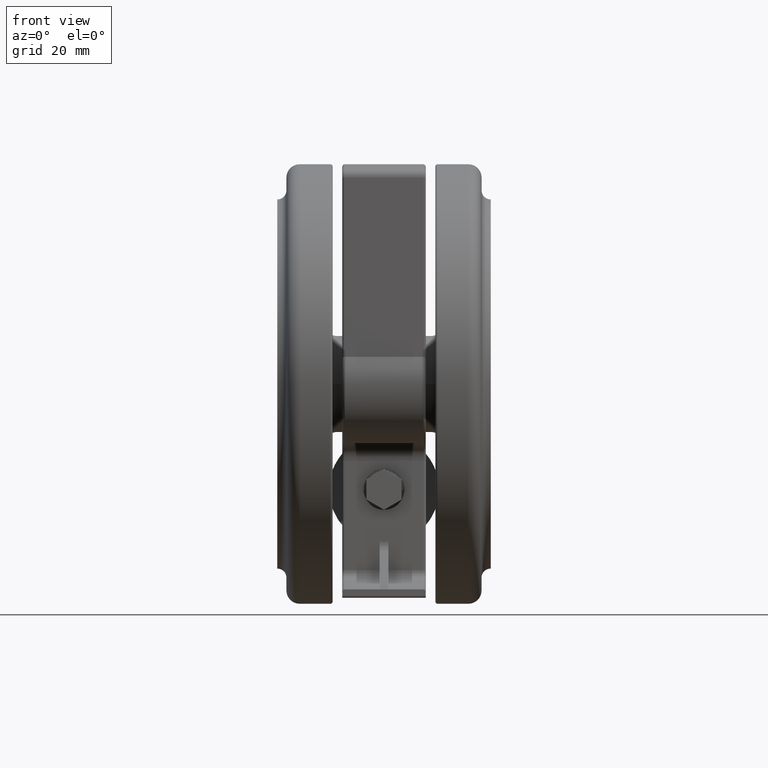
[diagram: clean part render]
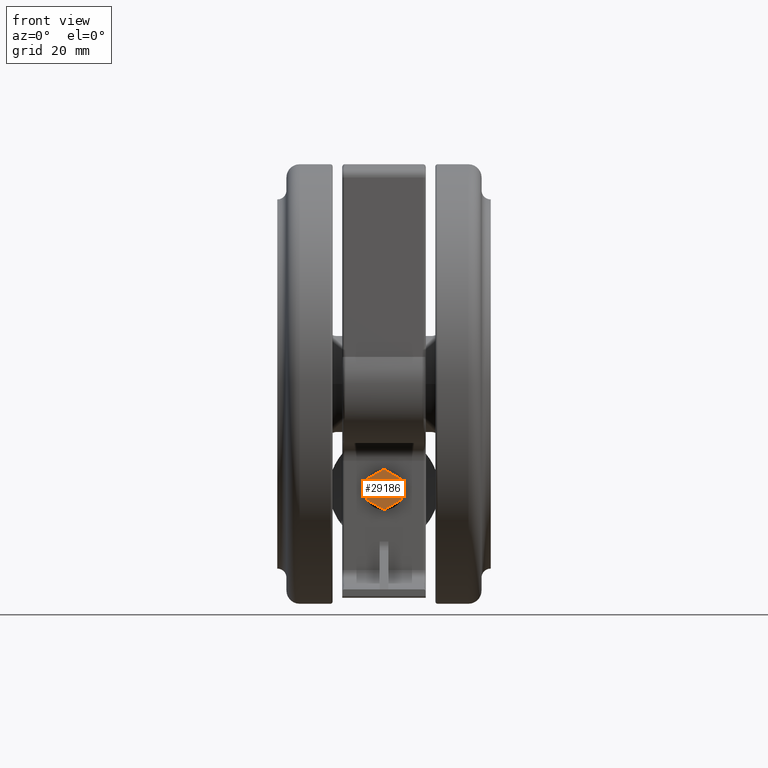
[diagram: same view with one face highlighted and labeled with its STEP entity id]
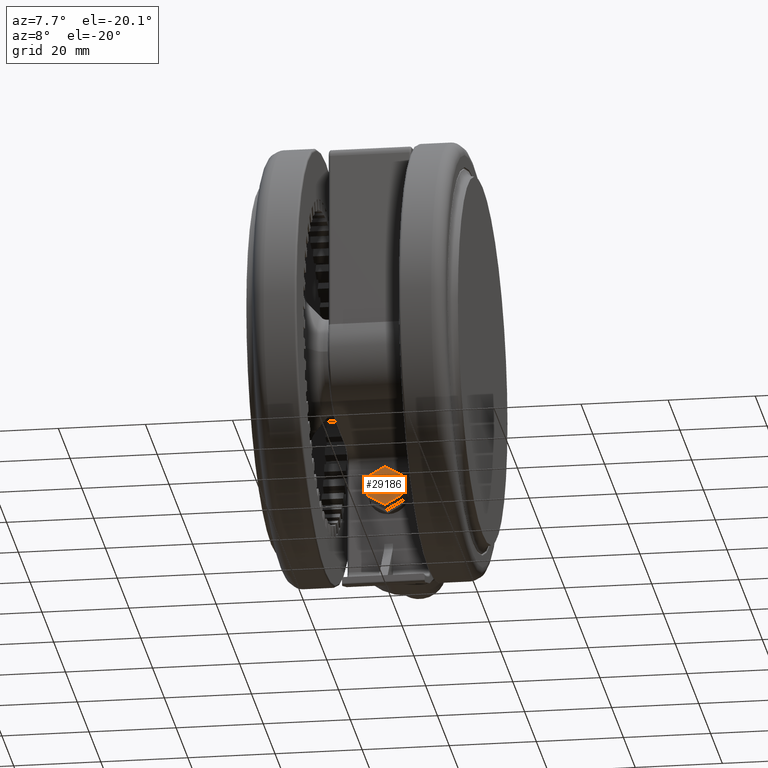
[diagram: same view with one face highlighted and labeled with its STEP entity id]
A machine part, front view. The second image highlights one B-rep face of the part: STEP entity #29186.
A second angle (auxiliary view) of the same face is appended — the face is thin or edge-on in the first view.
In plain terms, the highlighted planar face has unit normal (0, -1, -0).
Its self-contained STEP definition (entity closure, byte-faithful):
#61 = VECTOR ( 'NONE', #14828, 999.9999999999998900 ) ;
#67 = VERTEX_POINT ( 'NONE', #11247 ) ;
#483 = CARTESIAN_POINT ( 'NONE',  ( 19.38119784648298700, 13.70000000000003100, -24.30000000000000800 ) ) ;
#705 = VERTEX_POINT ( 'NONE', #22772 ) ;
#812 = VERTEX_POINT ( 'NONE', #28339 ) ;
#845 = DIRECTION ( 'NONE',  ( 1.224646799147352000E-016, -4.413456915335256700E-017, 1.000000000000000000 ) ) ;
#3256 = CARTESIAN_POINT ( 'NONE',  ( 23.99999999999999600, 13.70000000000003100, -24.30000000000001100 ) ) ;
#3566 = EDGE_LOOP ( 'NONE', ( #23375, #6774, #27808, #16905, #27290, #27100 ) ) ;
#5712 = DIRECTION ( 'NONE',  ( 1.161330068381886000E-016, -1.000000000000000000, -4.413456915335257900E-017 ) ) ;
#6674 = LINE ( 'NONE', #24826, #61 ) ;
#6774 = ORIENTED_EDGE ( 'NONE', *, *, #18357, .T. ) ;
#8913 = LINE ( 'NONE', #9899, #27331 ) ;
#8937 = VERTEX_POINT ( 'NONE', #12817 ) ;
#9899 = CARTESIAN_POINT ( 'NONE',  ( 21.69059892324149200, 13.70000000000003100, -20.30000000000001100 ) ) ;
#11247 = CARTESIAN_POINT ( 'NONE',  ( 28.61880215351700600, 13.70000000000003100, -24.30000000000001100 ) ) ;
#11619 = EDGE_CURVE ( 'NONE', #24491, #8937, #8913, .T. ) ;
#11999 = VECTOR ( 'NONE', #16662, 1000.000000000000000 ) ;
#12817 = CARTESIAN_POINT ( 'NONE',  ( 19.38119784648298700, 13.70000000000003100, -24.30000000000000800 ) ) ;
#13333 = CARTESIAN_POINT ( 'NONE',  ( 21.69059892324149200, 13.70000000000003100, -20.30000000000001100 ) ) ;
#14828 = DIRECTION ( 'NONE',  ( 0.5000000000000001100, 1.984484534720990000E-017, 0.8660254037844387100 ) ) ;
#15748 = VECTOR ( 'NONE', #18604, 1000.000000000000100 ) ;
#16454 = AXIS2_PLACEMENT_3D ( 'NONE', #3256, #5712, #845 ) ;
#16662 = DIRECTION ( 'NONE',  ( -1.000000000000000000, -1.161330068381886000E-016, 1.224646799147352000E-016 ) ) ;
#16905 = ORIENTED_EDGE ( 'NONE', *, *, #19906, .T. ) ;
#17411 = VECTOR ( 'NONE', #30497, 1000.000000000000000 ) ;
#17651 = EDGE_CURVE ( 'NONE', #705, #24491, #17858, .T. ) ;
#17858 = LINE ( 'NONE', #21736, #11999 ) ;
#18218 = LINE ( 'NONE', #22977, #17411 ) ;
#18357 = EDGE_CURVE ( 'NONE', #812, #27834, #18218, .T. ) ;
#18604 = DIRECTION ( 'NONE',  ( -0.4999999999999997200, -9.628816149097865900E-017, 0.8660254037844387100 ) ) ;
#19906 = EDGE_CURVE ( 'NONE', #67, #705, #22445, .T. ) ;
#21736 = CARTESIAN_POINT ( 'NONE',  ( 26.30940107675850500, 13.70000000000003100, -20.30000000000001100 ) ) ;
#22445 = LINE ( 'NONE', #31045, #15748 ) ;
#22772 = CARTESIAN_POINT ( 'NONE',  ( 26.30940107675850500, 13.70000000000003100, -20.30000000000001100 ) ) ;
#22977 = CARTESIAN_POINT ( 'NONE',  ( 21.69059892324149200, 13.70000000000003100, -28.30000000000001100 ) ) ;
#23375 = ORIENTED_EDGE ( 'NONE', *, *, #24406, .T. ) ;
#24344 = VECTOR ( 'NONE', #30300, 1000.000000000000100 ) ;
#24406 = EDGE_CURVE ( 'NONE', #8937, #812, #25140, .T. ) ;
#24491 = VERTEX_POINT ( 'NONE', #13333 ) ;
#24826 = CARTESIAN_POINT ( 'NONE',  ( 26.30940107675850100, 13.70000000000003100, -28.30000000000001100 ) ) ;
#24903 = DIRECTION ( 'NONE',  ( -0.5000000000000001100, -1.984484534720990000E-017, -0.8660254037844387100 ) ) ;
#25140 = LINE ( 'NONE', #483, #24344 ) ;
#25963 = EDGE_CURVE ( 'NONE', #27834, #67, #6674, .T. ) ;
#27100 = ORIENTED_EDGE ( 'NONE', *, *, #11619, .T. ) ;
#27290 = ORIENTED_EDGE ( 'NONE', *, *, #17651, .T. ) ;
#27331 = VECTOR ( 'NONE', #24903, 999.9999999999998900 ) ;
#27808 = ORIENTED_EDGE ( 'NONE', *, *, #25963, .T. ) ;
#27834 = VERTEX_POINT ( 'NONE', #30199 ) ;
#28274 = PLANE ( 'NONE',  #16454 ) ;
#28339 = CARTESIAN_POINT ( 'NONE',  ( 21.69059892324149200, 13.70000000000003100, -28.30000000000001100 ) ) ;
#29186 = ADVANCED_FACE ( 'NONE', ( #31878 ), #28274, .T. ) ;
#30199 = CARTESIAN_POINT ( 'NONE',  ( 26.30940107675850100, 13.70000000000003100, -28.30000000000001100 ) ) ;
#30300 = DIRECTION ( 'NONE',  ( 0.4999999999999997200, 9.628816149097865900E-017, -0.8660254037844387100 ) ) ;
#30497 = DIRECTION ( 'NONE',  ( 1.000000000000000000, 1.161330068381886000E-016, -1.224646799147352000E-016 ) ) ;
#31045 = CARTESIAN_POINT ( 'NONE',  ( 28.61880215351700600, 13.70000000000003100, -24.30000000000001100 ) ) ;
#31878 = FACE_OUTER_BOUND ( 'NONE', #3566, .T. ) ;